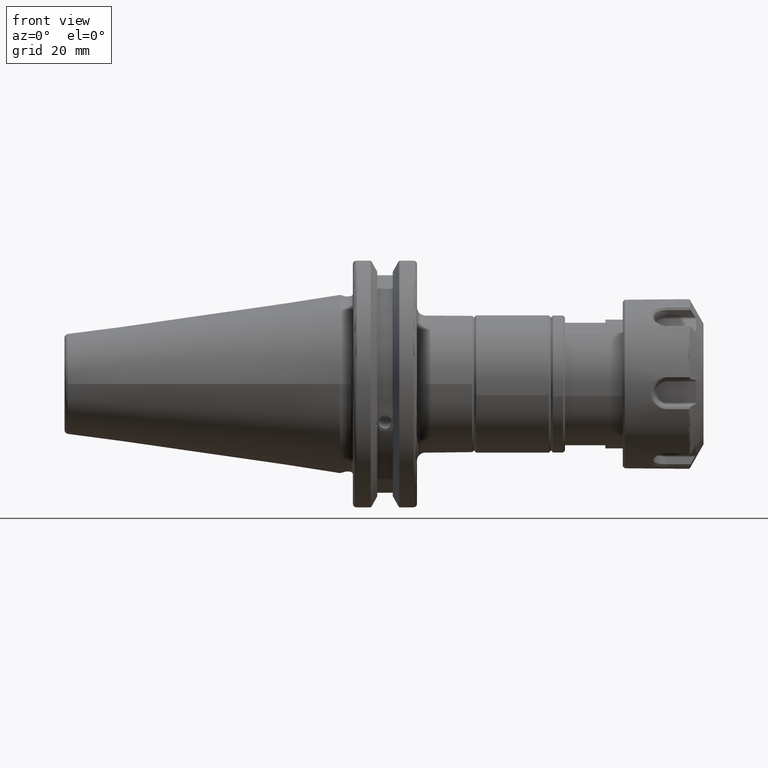
[diagram: clean part render]
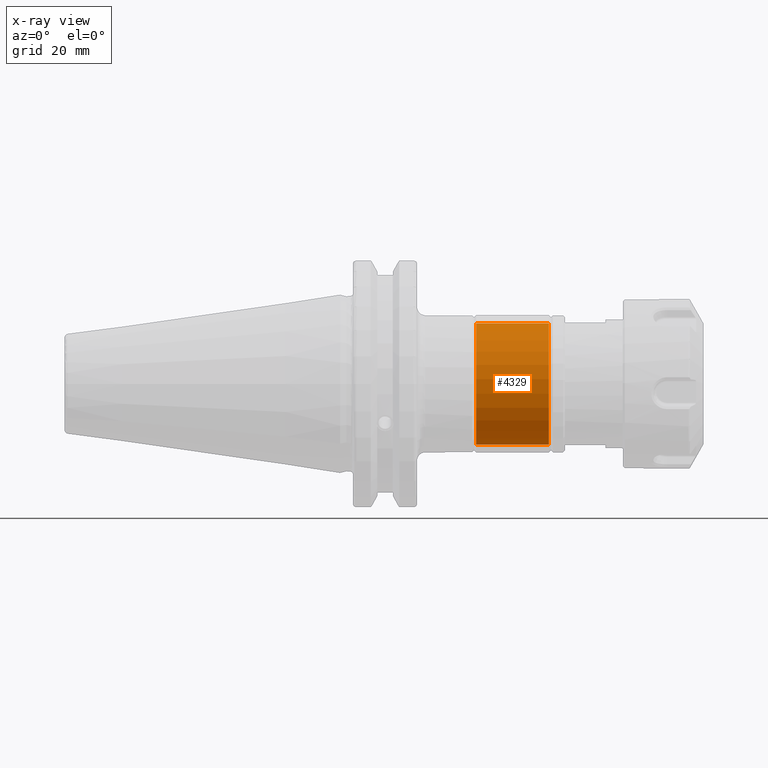
[diagram: x-ray — body ghosted, one internal face saturated and labeled with its STEP entity id]
A machine part, front view, then the same camera in x-ray: the body is ghosted and one INTERNAL B-rep face — a face not visible from any outside direction — is saturated and labeled: STEP entity #4329.
In plain terms, the highlighted cylindrical surface (bore or boss wall) has radius 15 mm, axis along (1, -0, -0).
Its self-contained STEP definition (entity closure, byte-faithful):
#503=CYLINDRICAL_SURFACE('',#4953,15.);
#753=FACE_OUTER_BOUND('',#1054,.T.);
#1054=EDGE_LOOP('',(#4004,#4005,#4006,#4007,#4008,#4009));
#1308=LINE('',#8947,#1560);
#1560=VECTOR('',#6202,15.);
#1787=CIRCLE('',#4948,15.);
#1788=CIRCLE('',#4949,15.);
#1791=CIRCLE('',#4954,15.);
#1792=CIRCLE('',#4955,15.);
#2185=VERTEX_POINT('',#8935);
#2186=VERTEX_POINT('',#8936);
#2189=VERTEX_POINT('',#8946);
#2190=VERTEX_POINT('',#8948);
#2791=EDGE_CURVE('',#2185,#2186,#1787,.T.);
#2792=EDGE_CURVE('',#2186,#2185,#1788,.T.);
#2796=EDGE_CURVE('',#2186,#2189,#1308,.T.);
#2797=EDGE_CURVE('',#2190,#2189,#1791,.T.);
#2798=EDGE_CURVE('',#2189,#2190,#1792,.T.);
#4004=ORIENTED_EDGE('',*,*,#2791,.F.);
#4005=ORIENTED_EDGE('',*,*,#2792,.F.);
#4006=ORIENTED_EDGE('',*,*,#2796,.T.);
#4007=ORIENTED_EDGE('',*,*,#2797,.F.);
#4008=ORIENTED_EDGE('',*,*,#2798,.F.);
#4009=ORIENTED_EDGE('',*,*,#2796,.F.);
#4329=ADVANCED_FACE('',(#753),#503,.F.);
#4948=AXIS2_PLACEMENT_3D('',#8937,#6189,#6190);
#4949=AXIS2_PLACEMENT_3D('',#8938,#6191,#6192);
#4953=AXIS2_PLACEMENT_3D('',#8945,#6200,#6201);
#4954=AXIS2_PLACEMENT_3D('',#8949,#6203,#6204);
#4955=AXIS2_PLACEMENT_3D('',#8950,#6205,#6206);
#6189=DIRECTION('center_axis',(-1.,0.,0.));
#6190=DIRECTION('ref_axis',(0.,-1.,0.));
#6191=DIRECTION('center_axis',(-1.,0.,0.));
#6192=DIRECTION('ref_axis',(0.,-1.,0.));
#6200=DIRECTION('center_axis',(1.,0.,0.));
#6201=DIRECTION('ref_axis',(0.,1.,0.));
#6202=DIRECTION('',(-1.,0.,0.));
#6203=DIRECTION('center_axis',(1.,0.,0.));
#6204=DIRECTION('ref_axis',(0.,-1.,0.));
#6205=DIRECTION('center_axis',(1.,0.,0.));
#6206=DIRECTION('ref_axis',(0.,-1.,0.));
#8935=CARTESIAN_POINT('',(18.5,15.,-1.83697019872103E-15));
#8936=CARTESIAN_POINT('',(18.5,-15.,-1.83697019872103E-15));
#8937=CARTESIAN_POINT('Origin',(18.5,0.,0.));
#8938=CARTESIAN_POINT('Origin',(18.5,0.,0.));
#8945=CARTESIAN_POINT('Origin',(9.5,0.,0.));
#8946=CARTESIAN_POINT('',(0.500000000000002,-15.,-1.83697019872103E-15));
#8947=CARTESIAN_POINT('',(9.5,-15.,-1.83697019872103E-15));
#8948=CARTESIAN_POINT('',(0.5,15.,1.83697019872103E-15));
#8949=CARTESIAN_POINT('Origin',(0.5,0.,0.));
#8950=CARTESIAN_POINT('Origin',(0.5,0.,0.));